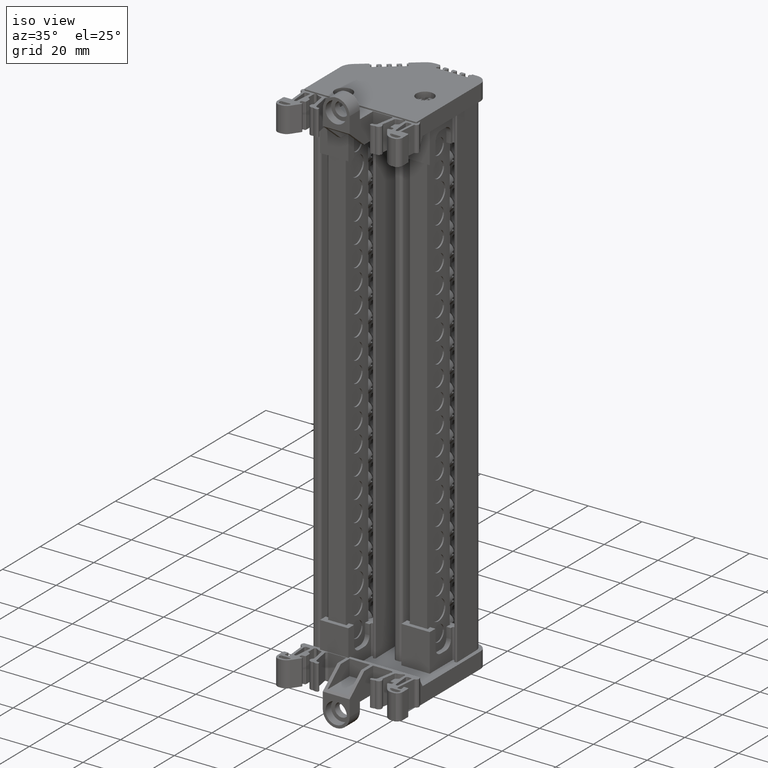
[diagram: clean part render]
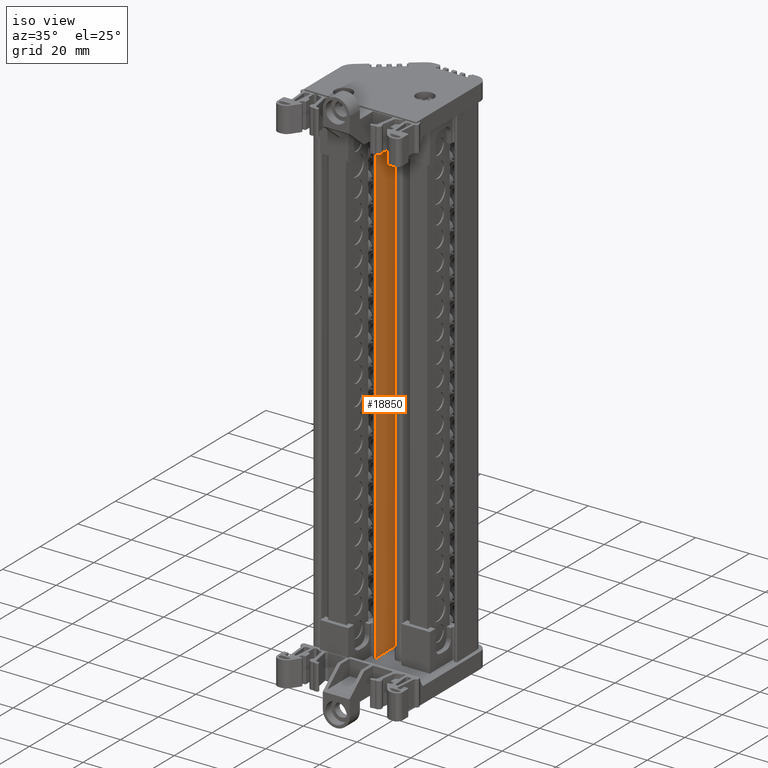
[diagram: same view with one face highlighted and labeled with its STEP entity id]
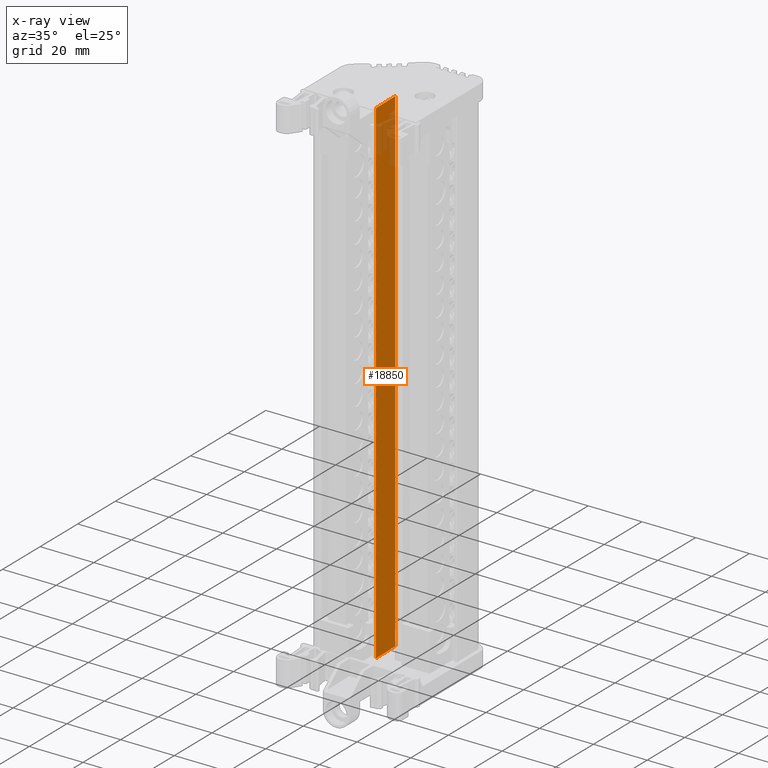
[diagram: x-ray of the same camera — body ghosted, the highlighted face saturated]
A machine part, iso view. The second image highlights one B-rep face of the part: STEP entity #18850.
The next image is the same camera in x-ray: the body ghosted, the highlighted face saturated — about 7% of this face is hidden behind the body in this view.
In plain terms, the highlighted planar face has unit normal (-0.9998, -0.0175, 0).
Its self-contained STEP definition (entity closure, byte-faithful):
#333 = LINE ( 'NONE', #335, #94733 ) ;
#335 = CARTESIAN_POINT ( 'NONE',  ( -49.10704252738050700, 23.01162871390098600, -36.09779384098944600 ) ) ;
#349 = DIRECTION ( 'NONE',  ( -0.01745240643726290300, 0.9998476951563916000, -0.0000000000000000000 ) ) ;
#11519 = VERTEX_POINT ( 'NONE', #64809 ) ;
#11928 = VERTEX_POINT ( 'NONE', #65230 ) ;
#11950 = VERTEX_POINT ( 'NONE', #65320 ) ;
#12014 = VERTEX_POINT ( 'NONE', #65613 ) ;
#15885 = EDGE_CURVE ( 'NONE', #11928, #11950, #69273, .T. ) ;
#15934 = EDGE_CURVE ( 'NONE', #12014, #11950, #69465, .T. ) ;
#15950 = EDGE_CURVE ( 'NONE', #11928, #11519, #69565, .T. ) ;
#18850 = ADVANCED_FACE ( 'NONE', ( #83241 ), #83260, .F. ) ;
#27035 = EDGE_CURVE ( 'NONE', #12014, #11519, #333, .T. ) ;
#38310 = EDGE_LOOP ( 'NONE', ( #68104, #67838, #67868, #67883 ) ) ;
#59544 = VECTOR ( 'NONE', #69559, 1000.000000000000000 ) ;
#64809 = CARTESIAN_POINT ( 'NONE',  ( -49.29193950102598600, 33.60436923970674200, -36.09779384098944600 ) ) ;
#65230 = CARTESIAN_POINT ( 'NONE',  ( -49.29193950094600000, 33.60436923970893000, 148.9721892898918700 ) ) ;
#65320 = CARTESIAN_POINT ( 'NONE',  ( -49.10704252730049300, 23.01162871390095100, 148.9721892898924700 ) ) ;
#65613 = CARTESIAN_POINT ( 'NONE',  ( -49.10704252738048600, 23.01162871389906400, -36.09779384098947500 ) ) ;
#67838 = ORIENTED_EDGE ( 'NONE', *, *, #15885, .T. ) ;
#67868 = ORIENTED_EDGE ( 'NONE', *, *, #15934, .F. ) ;
#67883 = ORIENTED_EDGE ( 'NONE', *, *, #27035, .T. ) ;
#68104 = ORIENTED_EDGE ( 'NONE', *, *, #15950, .F. ) ;
#69259 = DIRECTION ( 'NONE',  ( 0.01745240643726290300, -0.9998476951563916000, 0.0000000000000000000 ) ) ;
#69273 = LINE ( 'NONE', #69308, #71675 ) ;
#69308 = CARTESIAN_POINT ( 'NONE',  ( -49.10704252730050700, 23.01162871390238300, 148.9721892898924700 ) ) ;
#69465 = LINE ( 'NONE', #69495, #70849 ) ;
#69479 = DIRECTION ( 'NONE',  ( 4.322358144719086000E-013, 7.544704205899263300E-015, 1.000000000000000000 ) ) ;
#69495 = CARTESIAN_POINT ( 'NONE',  ( -49.10704252738077000, 23.01162871389905700, -36.79355170587447800 ) ) ;
#69559 = DIRECTION ( 'NONE',  ( -4.322358144719086000E-013, -7.544704205899263300E-015, -1.000000000000000000 ) ) ;
#69565 = LINE ( 'NONE', #69570, #59544 ) ;
#69570 = CARTESIAN_POINT ( 'NONE',  ( -49.29193950102629900, 33.60436923970751600, -36.79355170587447800 ) ) ;
#70849 = VECTOR ( 'NONE', #69479, 1000.000000000000000 ) ;
#71675 = VECTOR ( 'NONE', #69259, 1000.000000000000000 ) ;
#82265 = AXIS2_PLACEMENT_3D ( 'NONE', #83262, #83264, #83170 ) ;
#83170 = DIRECTION ( 'NONE',  ( 0.01745240643726290300, -0.9998476951563916000, 0.0000000000000000000 ) ) ;
#83241 = FACE_OUTER_BOUND ( 'NONE', #38310, .T. ) ;
#83260 = PLANE ( 'NONE',  #82265 ) ;
#83262 = CARTESIAN_POINT ( 'NONE',  ( -49.10704252738080600, 23.01162871390097900, -36.79355170587447800 ) ) ;
#83264 = DIRECTION ( 'NONE',  ( -0.9998476951563916000, -0.01745240643726290300, 4.323016561080337500E-013 ) ) ;
#94733 = VECTOR ( 'NONE', #349, 1000.000000000000000 ) ;